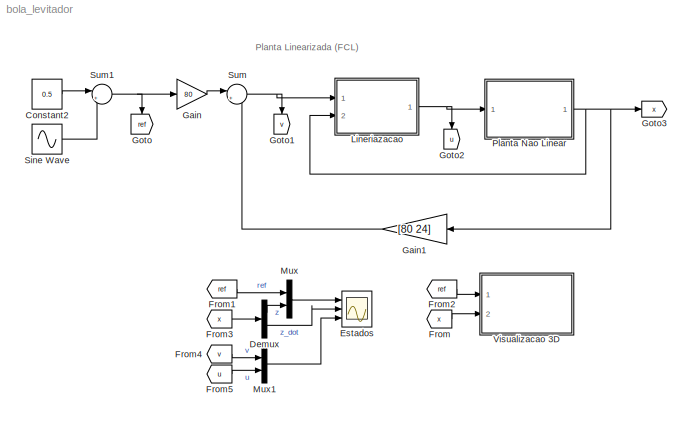
MODEL bola_levitador
KIND model
BLOCK [Constant] Constant2
  NameLocation = right
  SID = 270
  Value = 0.5
BLOCK [Demux] Demux
  Outputs = 2
  Ports = [1, 2]
  SID = 254
BLOCK [Scope] Estados
  Floating = off
  NumInputPorts = 3
  Ports = [3]
  SID = 206
  ScopeSpecificationString = Simulink.scopes.TimeScopeBlockCfg('CurrentConfiguration', extmgr.ConfigurationSet(extmgr.Configuration('Core','General UI',true),extmgr.Configuration('Core','Source UI',true),extmgr.Configuration('Sources','WiredSimulink',true),extmgr.Configuration('Visuals','Time Domain',true,'SerializedDisplays',{struct('MinYLimReal','-0.02937','MaxYLimReal','0.61437','YLabelReal','','MinYLimMag','0.00000','MaxY...<+3073ch>
BLOCK [From] From
  GotoTag = x
  SID = 231
BLOCK [From] From1
  GotoTag = ref
  SID = 208
BLOCK [From] From2
  GotoTag = ref
  SID = 210
BLOCK [From] From3
  GotoTag = x
  SID = 233
BLOCK [From] From4
  GotoTag = v
  SID = 235
BLOCK [From] From5
  GotoTag = u
  SID = 236
BLOCK [Gain] Gain
  Gain = 80
  SID = 194
BLOCK [Gain] Gain1
  Gain = [80 24]
  Multiplication = Matrix(K*u)
  NameLocation = top
  SID = 203
BLOCK [Goto] Goto
  GotoTag = ref
  NameLocation = left
  SID = 201
BLOCK [Goto] Goto1
  GotoTag = v
  NameLocation = left
  SID = 204
BLOCK [Goto] Goto2
  GotoTag = u
  NameLocation = left
  SID = 205
BLOCK [Goto] Goto3
  GotoTag = x
  SID = 209
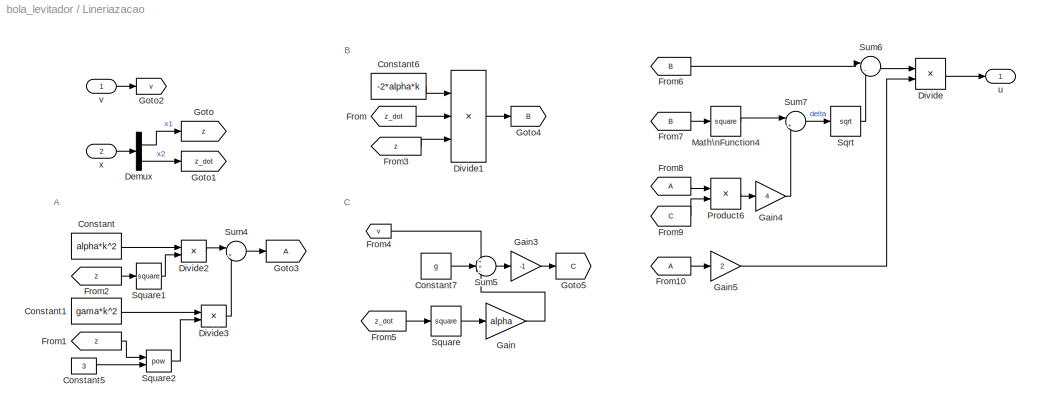
BLOCK [SubSystem] Lineriazacao
  Ports = [2, 1]
  RequestExecContextInheritance = off
  SID = 184
BLOCK [Constant] Lineriazacao/Constant
  SID = 266
  Value = alpha*k^2
BLOCK [Constant] Lineriazacao/Constant1
  SID = 269
  Value = gama*k^2
BLOCK [Constant] Lineriazacao/Constant5
  SID = 134
  Value = 3
BLOCK [Constant] Lineriazacao/Constant6
  SID = 137
  Value = -2*alpha*k
BLOCK [Constant] Lineriazacao/Constant7
  SID = 147
  Value = g
BLOCK [Demux] Lineriazacao/Demux
  Outputs = 2
  Ports = [1, 2]
  SID = 238
BLOCK [Product] Lineriazacao/Divide
  Inputs = */
  Ports = [2, 1]
  SID = 256
BLOCK [Product] Lineriazacao/Divide1
  Inputs = **/
  Ports = [3, 1]
  SID = 257
BLOCK [Product] Lineriazacao/Divide2
  Inputs = */
  Ports = [2, 1]
  SID = 267
BLOCK [Product] Lineriazacao/Divide3
  Inputs = */
  Ports = [2, 1]
  SID = 268
BLOCK [From] Lineriazacao/From
  GotoTag = z_dot
  SID = 124
BLOCK [From] Lineriazacao/From1
  GotoTag = z
  SID = 242
BLOCK [From] Lineriazacao/From10
  SID = 168
BLOCK [From] Lineriazacao/From2
  GotoTag = z
  SID = 128
BLOCK [From] Lineriazacao/From3
  GotoTag = z
  SID = 139
BLOCK [From] Lineriazacao/From4
  GotoTag = v
  SID = 245
BLOCK [From] Lineriazacao/From5
  GotoTag = z_dot
  SID = 148
BLOCK [From] Lineriazacao/From6
  GotoTag = B
  SID = 153
BLOCK [From] Lineriazacao/From7
  GotoTag = B
  SID = 158
BLOCK [From] Lineriazacao/From8
  SID = 161
BLOCK [From] Lineriazacao/From9
  GotoTag = C
  SID = 162
BLOCK [Gain] Lineriazacao/Gain
  Gain = alpha
  SID = 259
BLOCK [Gain] Lineriazacao/Gain3
  Gain = -1
  SID = 145
BLOCK [Gain] Lineriazacao/Gain4
  Gain = 4
  SID = 164
BLOCK [Gain] Lineriazacao/Gain5
  Gain = 2
  SID = 169
BLOCK [Goto] Lineriazacao/Goto
  GotoTag = z
  SID = 239
BLOCK [Goto] Lineriazacao/Goto1
  GotoTag = z_dot
  SID = 240
BLOCK [Goto] Lineriazacao/Goto2
  GotoTag = v
  SID = 244
BLOCK [Goto] Lineriazacao/Goto3
  SID = 136
BLOCK [Goto] Lineriazacao/Goto4
  GotoTag = B
  SID = 140
BLOCK [Goto] Lineriazacao/Goto5
  GotoTag = C
  SID = 152
BLOCK [Math] Lineriazacao/Math\nFunction4
  Operator = square
  Ports = [1, 1]
  SID = 159
BLOCK [Product] Lineriazacao/Product6
  Ports = [2, 1]
  SID = 163
BLOCK [Sqrt] Lineriazacao/Sqrt
  SID = 157
BLOCK [Math] Lineriazacao/Square
  Operator = square
  Ports = [1, 1]
  SID = 258
BLOCK [Math] Lineriazacao/Square1
  Operator = square
  Ports = [1, 1]
  SID = 261
BLOCK [Math] Lineriazacao/Square2
  Operator = pow
  Ports = [2, 1]
  SID = 263
BLOCK [Sum] Lineriazacao/Sum4
  Inputs = |+-
  Ports = [2, 1]
  SID = 132
BLOCK [Sum] Lineriazacao/Sum5
  Inputs = ++-
  Ports = [3, 1]
  SID = 146
BLOCK [Sum] Lineriazacao/Sum6
  Inputs = |-+
  Ports = [2, 1]
  SID = 154
BLOCK [Sum] Lineriazacao/Sum7
  Inputs = |+-
  Ports = [2, 1]
  SID = 160
BLOCK [Outport] Lineriazacao/u
  SID = 196
BLOCK [Inport] Lineriazacao/v
  SID = 185
BLOCK [Inport] Lineriazacao/x
  Port = 2
  SID = 237
BLOCK [Mux] Mux
  DisplayOption = bar
  Inputs = 2
  Ports = [2, 1]
  SID = 255
BLOCK [Mux] Mux1
  DisplayOption = bar
  Inputs = 2
  Ports = [2, 1]
  SID = 393
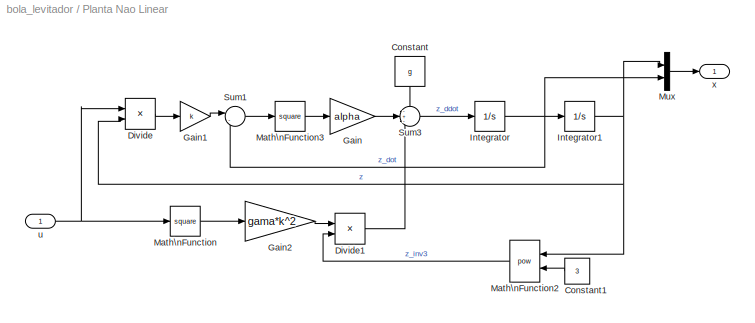
BLOCK [SubSystem] Planta Nao Linear
  Ports = [1, 1]
  RequestExecContextInheritance = off
  SID = 86
BLOCK [Constant] Planta Nao Linear/Constant
  NameLocation = left
  SID = 48
  Value = g
BLOCK [Constant] Planta Nao Linear/Constant1
  NameLocation = top
  SID = 49
  Value = 3
BLOCK [Product] Planta Nao Linear/Divide
  Inputs = */
  Ports = [2, 1]
  SID = 264
BLOCK [Product] Planta Nao Linear/Divide1
  Inputs = */
  Ports = [2, 1]
  SID = 265
BLOCK [Gain] Planta Nao Linear/Gain
  Gain = alpha
  SID = 50
BLOCK [Gain] Planta Nao Linear/Gain1
  Gain = k
  SID = 51
BLOCK [Gain] Planta Nao Linear/Gain2
  Gain = gama*k^2
  SID = 52
BLOCK [Integrator] Planta Nao Linear/Integrator
  Ports = [1, 1]
  SID = 53
BLOCK [Integrator] Planta Nao Linear/Integrator1
  InitialCondition = 0.035
  Ports = [1, 1]
  SID = 54
BLOCK [Math] Planta Nao Linear/Math\nFunction
  Operator = square
  Ports = [1, 1]
  SID = 55
BLOCK [Math] Planta Nao Linear/Math\nFunction2
  NameLocation = top
  Operator = pow
  Ports = [2, 1]
  SID = 57
BLOCK [Math] Planta Nao Linear/Math\nFunction3
  Operator = square
  Ports = [1, 1]
  SID = 58
BLOCK [Mux] Planta Nao Linear/Mux
  DisplayOption = bar
  Inputs = 2
  Ports = [2, 1]
  SID = 181
BLOCK [Sum] Planta Nao Linear/Sum1
  Inputs = |-+
  Ports = [2, 1]
  SID = 62
BLOCK [Sum] Planta Nao Linear/Sum3
  Inputs = -+-
  Ports = [3, 1]
  SID = 102
BLOCK [Inport] Planta Nao Linear/u
  SID = 187
BLOCK [Outport] Planta Nao Linear/x
  SID = 91
BLOCK [Sin] Sine Wave
  Amplitude = 0.05
  Ports = [0, 1]
  SID = 271
  SampleTime = 0
BLOCK [Sum] Sum
  Inputs = |+-
  Ports = [2, 1]
  SID = 195
BLOCK [Sum] Sum1
  Inputs = |++
  Ports = [2, 1]
  SID = 272
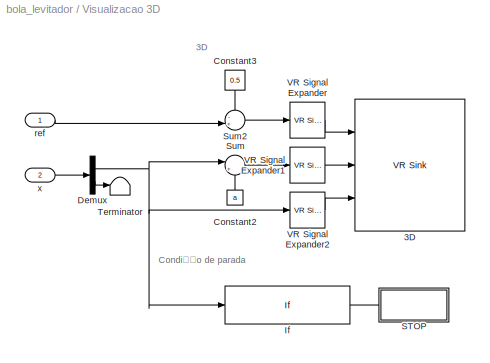
BLOCK [SubSystem] Visualizacao 3D
  Ports = [2]
  RequestExecContextInheritance = off
  SID = 211
BLOCK [Reference] Visualizacao 3D/3D  REF=vrlib/VR Sink
  AllowVariableSize = off
  AutoView = on
  FieldsWritten = Indicador.translation.3.1.1.double#Esfera.translation.3.1.1.double#Zoom.position.3.1.1.double
  InstantiateOnLoad = on
  MultithreadedSim = auto
  Ports = [3]
  RemoteChange = off
  RemoteView = off
  SID = 228
  SampleTime = 0.05
  SourceBlock = vrlib/VR Sink
  SourceProductBaseCode = SL
  SourceType = Virtual Reality Sink
  VideoDimensions = []
  ViewEnable = on
  WorldFileName = modelo3d.x3d
BLOCK [Constant] Visualizacao 3D/Constant2
  NameLocation = right
  SID = 214
  Value = a
BLOCK [Constant] Visualizacao 3D/Constant3
  NameLocation = left
  SID = 215
  Value = 0.5
BLOCK [Demux] Visualizacao 3D/Demux
  Outputs = 2
  Ports = [1, 2]
  SID = 216
BLOCK [If] Visualizacao 3D/If
  IfExpression = u1 > 1.10 | u1 <= -0.001
  Ports = [1, 1]
  SID = 217
  ShowElse = off
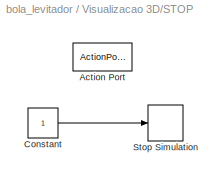
BLOCK [SubSystem] Visualizacao 3D/STOP
  Ports = [0, 0, 0, 0, 0, 0, 0, 1]
  RequestExecContextInheritance = off
  SID = 218
  TreatAsAtomicUnit = on
BLOCK [ActionPort] Visualizacao 3D/STOP/Action Port
  ActionPortLabel = if(u1 > 1.10 | u1 <= -0.001)
  SID = 219
BLOCK [Constant] Visualizacao 3D/STOP/Constant
  SID = 220
BLOCK [Stop] Visualizacao 3D/STOP/Stop Simulation
  SID = 221
BLOCK [Sum] Visualizacao 3D/Sum
  Inputs = |+-
  Ports = [2, 1]
  SID = 222
BLOCK [Sum] Visualizacao 3D/Sum2
  Inputs = -+|
  Ports = [2, 1]
  SID = 223
BLOCK [Terminator] Visualizacao 3D/Terminator
  SID = 224
BLOCK [Reference] Visualizacao 3D/VR Signal Expander  REF=vrlib/VR Signal Expander
  Ports = [1, 1]
  RTWMemSecDataConstants = Inherit from model
  RTWMemSecDataInternal = Inherit from model
  RTWMemSecDataParameters = Inherit from model
  RTWMemSecFuncExecute = Inherit from model
  RTWMemSecFuncInitTerm = Inherit from model
  SID = 225
  SourceBlock = vrlib/VR Signal Expander
  SourceProductBaseCode = SL
  SourceType = VR Signal Expander
  outidx = 2
  outwidth = 3
BLOCK [Reference] Visualizacao 3D/VR Signal Expander1  REF=vrlib/VR Signal Expander
  Ports = [1, 1]
  RTWMemSecDataConstants = Inherit from model
  RTWMemSecDataInternal = Inherit from model
  RTWMemSecDataParameters = Inherit from model
  RTWMemSecFuncExecute = Inherit from model
  RTWMemSecFuncInitTerm = Inherit from model
  SID = 226
  SourceBlock = vrlib/VR Signal Expander
  SourceProductBaseCode = SL
  SourceType = VR Signal Expander
  outidx = 2
  outwidth = 3
BLOCK [Reference] Visualizacao 3D/VR Signal Expander2  REF=vrlib/VR Signal Expander
  Ports = [1, 1]
  RTWMemSecDataConstants = Inherit from model
  RTWMemSecDataInternal = Inherit from model
  RTWMemSecDataParameters = Inherit from model
  RTWMemSecFuncExecute = Inherit from model
  RTWMemSecFuncInitTerm = Inherit from model
  SID = 227
  SourceBlock = vrlib/VR Signal Expander
  SourceProductBaseCode = SL
  SourceType = VR Signal Expander
  outidx = 2
  outwidth = 3
BLOCK [Inport] Visualizacao 3D/ref
  SID = 212
BLOCK [Inport] Visualizacao 3D/x
  Port = 2
  SID = 213
ANNOTATION (root): Planta Linearizada (FCL)
ANNOTATION Lineriazacao: \n \n \n \n \n \n \n \n $A = \\frac{\\alpha k^2}{x_1^2}-\\frac{\\gamma k^2}{x_1^3}$ \n \n \n \n
ANNOTATION Lineriazacao: \n \n \n \n \n \n \n \n $B = -2\\alpha k\\frac{x_2}{x_1}$ \n \n \n \n
ANNOTATION Lineriazacao: \n \n \n \n \n \n \n \n $C = - (v(t) + g - \\alpha x_2^2 )$ \n \n \n \n
ANNOTATION Lineriazacao: \n \n \n \n \n \n \n \n $u = \\frac{-B+\\sqrt{B^2-4AC}}{2A}$ \n \n \n \n
ANNOTATION Lineriazacao: \n \n \n \n \n \n \n \n $x_1 = z \\quad\nx_2 = \\dot z$ \n \n \n \n
ANNOTATION Lineriazacao: A
ANNOTATION Lineriazacao: B
ANNOTATION Lineriazacao: C
ANNOTATION Planta Nao Linear: \n \n \n \n \n \n \n \n $\\ddot z = \\alpha \\left (\\dot z-k\\frac{u(t)}{z} \\right )^2 - \\gamma k^2 \\frac{u(t)^2}{z^3} -g$ \n \n \n \n
ANNOTATION Visualizacao 3D: 3D
ANNOTATION Visualizacao 3D: Condição de parada
LINE Constant2:1 -> Sum1:1
LINE Demux:1 -> Mux:2
LINE Demux:2 -> Estados:2
LINE From1:1 -> Mux:1
LINE From2:1 -> Visualizacao 3D:1
LINE From3:1 -> Demux:1
LINE From4:1 -> Mux1:1
LINE From5:1 -> Mux1:2
LINE From:1 -> Visualizacao 3D:2
LINE Gain1:1 -> Sum:2
LINE Gain:1 -> Sum:1
LINE Lineriazacao/Constant1:1 -> Lineriazacao/Divide3:1
LINE Lineriazacao/Constant5:1 -> Lineriazacao/Square2:2
LINE Lineriazacao/Constant6:1 -> Lineriazacao/Divide1:1
LINE Lineriazacao/Constant7:1 -> Lineriazacao/Sum5:2
LINE Lineriazacao/Constant:1 -> Lineriazacao/Divide2:1
LINE Lineriazacao/Demux:1 -> Lineriazacao/Goto:1
LINE Lineriazacao/Demux:2 -> Lineriazacao/Goto1:1
LINE Lineriazacao/Divide1:1 -> Lineriazacao/Goto4:1
LINE Lineriazacao/Divide2:1 -> Lineriazacao/Sum4:1
LINE Lineriazacao/Divide3:1 -> Lineriazacao/Sum4:2
LINE Lineriazacao/Divide:1 -> Lineriazacao/u:1
LINE Lineriazacao/From10:1 -> Lineriazacao/Gain5:1
LINE Lineriazacao/From1:1 -> Lineriazacao/Square2:1
LINE Lineriazacao/From2:1 -> Lineriazacao/Square1:1
LINE Lineriazacao/From3:1 -> Lineriazacao/Divide1:3
LINE Lineriazacao/From4:1 -> Lineriazacao/Sum5:1
LINE Lineriazacao/From5:1 -> Lineriazacao/Square:1
LINE Lineriazacao/From6:1 -> Lineriazacao/Sum6:1
LINE Lineriazacao/From7:1 -> Lineriazacao/Math\nFunction4:1
LINE Lineriazacao/From8:1 -> Lineriazacao/Product6:1
LINE Lineriazacao/From9:1 -> Lineriazacao/Product6:2
LINE Lineriazacao/From:1 -> Lineriazacao/Divide1:2
LINE Lineriazacao/Gain3:1 -> Lineriazacao/Goto5:1
LINE Lineriazacao/Gain4:1 -> Lineriazacao/Sum7:2
LINE Lineriazacao/Gain5:1 -> Lineriazacao/Divide:2
LINE Lineriazacao/Gain:1 -> Lineriazacao/Sum5:3
LINE Lineriazacao/Math\nFunction4:1 -> Lineriazacao/Sum7:1
LINE Lineriazacao/Product6:1 -> Lineriazacao/Gain4:1
LINE Lineriazacao/Sqrt:1 -> Lineriazacao/Sum6:2
LINE Lineriazacao/Square1:1 -> Lineriazacao/Divide2:2
LINE Lineriazacao/Square2:1 -> Lineriazacao/Divide3:2
LINE Lineriazacao/Square:1 -> Lineriazacao/Gain:1
LINE Lineriazacao/Sum4:1 -> Lineriazacao/Goto3:1
LINE Lineriazacao/Sum5:1 -> Lineriazacao/Gain3:1
LINE Lineriazacao/Sum6:1 -> Lineriazacao/Divide:1
LINE Lineriazacao/Sum7:1 -> Lineriazacao/Sqrt:1
LINE Lineriazacao/v:1 -> Lineriazacao/Goto2:1
LINE Lineriazacao/x:1 -> Lineriazacao/Demux:1
NET Lineriazacao:1 -> Goto2:1, Planta Nao Linear:1
LINE Mux1:1 -> Estados:3
LINE Mux:1 -> Estados:1
LINE Planta Nao Linear/Constant1:1 -> Planta Nao Linear/Math\nFunction2:2
LINE Planta Nao Linear/Constant:1 -> Planta Nao Linear/Sum3:1
LINE Planta Nao Linear/Divide1:1 -> Planta Nao Linear/Sum3:3
LINE Planta Nao Linear/Divide:1 -> Planta Nao Linear/Gain1:1
LINE Planta Nao Linear/Gain1:1 -> Planta Nao Linear/Sum1:1
LINE Planta Nao Linear/Gain2:1 -> Planta Nao Linear/Divide1:1
LINE Planta Nao Linear/Gain:1 -> Planta Nao Linear/Sum3:2
NET Planta Nao Linear/Integrator1:1 -> Planta Nao Linear/Divide:2, Planta Nao Linear/Math\nFunction2:1, Planta Nao Linear/Mux:1
NET Planta Nao Linear/Integrator:1 -> Planta Nao Linear/Integrator1:1, Planta Nao Linear/Mux:2, Planta Nao Linear/Sum1:2
LINE Planta Nao Linear/Math\nFunction2:1 -> Planta Nao Linear/Divide1:2
LINE Planta Nao Linear/Math\nFunction3:1 -> Planta Nao Linear/Gain:1
LINE Planta Nao Linear/Math\nFunction:1 -> Planta Nao Linear/Gain2:1
LINE Planta Nao Linear/Mux:1 -> Planta Nao Linear/x:1
LINE Planta Nao Linear/Sum1:1 -> Planta Nao Linear/Math\nFunction3:1
LINE Planta Nao Linear/Sum3:1 -> Planta Nao Linear/Integrator:1
NET Planta Nao Linear/u:1 -> Planta Nao Linear/Divide:1, Planta Nao Linear/Math\nFunction:1
NET Planta Nao Linear:1 -> Gain1:1, Goto3:1, Lineriazacao:2
LINE Sine Wave:1 -> Sum1:2
NET Sum1:1 -> Gain:1, Goto:1
NET Sum:1 -> Goto1:1, Lineriazacao:1
LINE Visualizacao 3D/Constant2:1 -> Visualizacao 3D/Sum:2
LINE Visualizacao 3D/Constant3:1 -> Visualizacao 3D/Sum2:1
NET Visualizacao 3D/Demux:1 -> Visualizacao 3D/If:1, Visualizacao 3D/Sum:1, Visualizacao 3D/VR Signal Expander2:1
LINE Visualizacao 3D/Demux:2 -> Visualizacao 3D/Terminator:1
LINE Visualizacao 3D/If:1 -> Visualizacao 3D/STOP:ifaction
LINE Visualizacao 3D/STOP/Constant:1 -> Visualizacao 3D/STOP/Stop Simulation:1
LINE Visualizacao 3D/Sum2:1 -> Visualizacao 3D/VR Signal Expander:1
LINE Visualizacao 3D/Sum:1 -> Visualizacao 3D/VR Signal Expander1:1
LINE Visualizacao 3D/VR Signal Expander1:1 -> Visualizacao 3D/3D:2
LINE Visualizacao 3D/VR Signal Expander2:1 -> Visualizacao 3D/3D:3
LINE Visualizacao 3D/VR Signal Expander:1 -> Visualizacao 3D/3D:1
LINE Visualizacao 3D/ref:1 -> Visualizacao 3D/Sum2:2
LINE Visualizacao 3D/x:1 -> Visualizacao 3D/Demux:1
note: NET lines group one-source signal fan-out (src -> all destinations, sorted); 1:1 wires keep LINE
